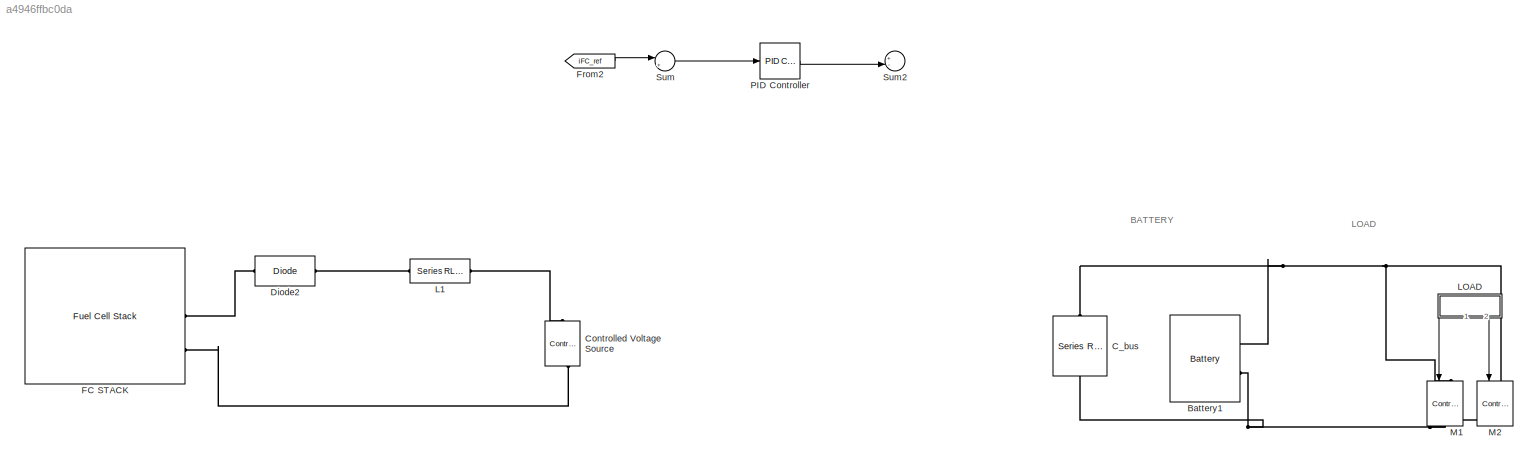
MODEL slx_a4946ffbc0da
KIND model
CONFIG AbsTol = auto
CONFIG EnableMultiTasking = off
CONFIG FixedStep = auto
CONFIG MaxStep = auto
CONFIG MinStep = auto
CONFIG RelTol = 1e-3
CONFIG SampleTimeConstraint = Unconstrained
CONFIG SolverName = VariableStepAuto
CONFIG StartTime = 0.0
CONFIG StopTime = 10.0
BLOCK [Reference] Battery1  REF=spsBatteryLib/Battery
  Ports = [0, 1, 0, 0, 0, 2]
  SourceBlock = spsBatteryLib/Battery
  SourceProductBaseCode = PS
  SourceType = Battery
BLOCK [Reference] C_bus  REF=spsSeriesRLCBranchLib/Series RLC Branch
  NameLocation = left
  Ports = [0, 0, 0, 0, 0, 1, 1]
  SourceBlock = spsSeriesRLCBranchLib/Series RLC Branch
  SourceProductBaseCode = PS
  SourceType = Series RLC Branch
BLOCK [Reference] Controlled Voltage Source  REF=spsControlledVoltageSourceLib/Controlled Voltage Source
  Ports = [1, 0, 0, 0, 0, 1, 1]
  SourceBlock = spsControlledVoltageSourceLib/Controlled Voltage Source
  SourceProductBaseCode = PS
  SourceType = Controlled Voltage Source
BLOCK [Reference] Diode2  REF=spsDiodeLib/Diode
  Ports = [0, 0, 0, 0, 0, 1, 1]
  SourceBlock = spsDiodeLib/Diode
  SourceProductBaseCode = PS
  SourceType = Diode
BLOCK [Reference] FC STACK  REF=spsFuelCellStackLib/Fuel Cell Stack
  Ports = [0, 1, 0, 0, 0, 0, 2]
  SourceBlock = spsFuelCellStackLib/Fuel Cell Stack
  SourceProductBaseCode = PS
  SourceType = Fuel Cell Stack
BLOCK [From] From2
  GotoTag = iFC_ref
BLOCK [Reference] L1  REF=spsSeriesRLCBranchLib/Series RLC Branch
  Ports = [0, 0, 0, 0, 0, 1, 1]
  SourceBlock = spsSeriesRLCBranchLib/Series RLC Branch
  SourceProductBaseCode = PS
  SourceType = Series RLC Branch
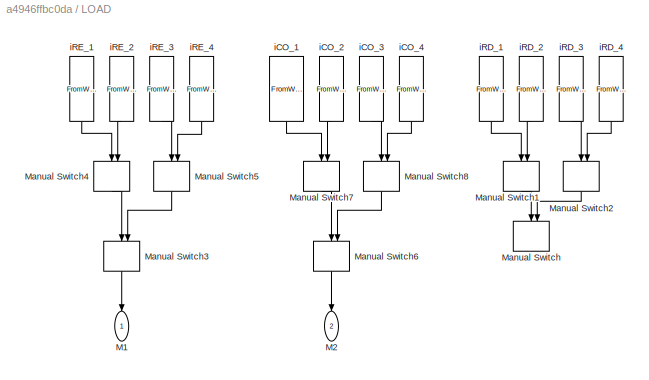
BLOCK [SubSystem] LOAD
  NameLocation = left
  Ports = [0, 2]
  RequestExecContextInheritance = off
BLOCK [Outport] LOAD/M1
  NameLocation = left
BLOCK [Outport] LOAD/M2
  NameLocation = left
  Port = 2
BLOCK [ManualSwitch] LOAD/Manual Switch
  Commented = on
  CurrentSetting = 0
  NameLocation = right
BLOCK [ManualSwitch] LOAD/Manual Switch1
  Commented = on
  NameLocation = right
BLOCK [ManualSwitch] LOAD/Manual Switch2
  Commented = on
  NameLocation = right
BLOCK [ManualSwitch] LOAD/Manual Switch3
  CurrentSetting = 0
  NameLocation = right
BLOCK [ManualSwitch] LOAD/Manual Switch4
  CurrentSetting = 0
  NameLocation = right
BLOCK [ManualSwitch] LOAD/Manual Switch5
  CurrentSetting = 0
  NameLocation = right
BLOCK [ManualSwitch] LOAD/Manual Switch6
  CurrentSetting = 0
  NameLocation = right
BLOCK [ManualSwitch] LOAD/Manual Switch7
  CurrentSetting = 0
  NameLocation = right
BLOCK [ManualSwitch] LOAD/Manual Switch8
  CurrentSetting = 0
  NameLocation = right
BLOCK [FromWorkspace] LOAD/iCO_1
  NameLocation = right
  VariableName = iCO_1
BLOCK [FromWorkspace] LOAD/iCO_2
  NameLocation = right
  VariableName = iCO_2
BLOCK [FromWorkspace] LOAD/iCO_3
  NameLocation = right
  VariableName = iCO_3
BLOCK [FromWorkspace] LOAD/iCO_4
  NameLocation = right
  VariableName = iCO_4
BLOCK [FromWorkspace] LOAD/iRD_1
  Commented = on
  NameLocation = right
  VariableName = iRD_1
BLOCK [FromWorkspace] LOAD/iRD_2
  Commented = on
  NameLocation = right
  VariableName = iRD_2
BLOCK [FromWorkspace] LOAD/iRD_3
  Commented = on
  NameLocation = right
  VariableName = iRD_3
BLOCK [FromWorkspace] LOAD/iRD_4
  Commented = on
  NameLocation = right
  VariableName = iRD_4
BLOCK [FromWorkspace] LOAD/iRE_1
  NameLocation = right
  VariableName = iRE_1
BLOCK [FromWorkspace] LOAD/iRE_2
  NameLocation = right
  VariableName = iRE_2
BLOCK [FromWorkspace] LOAD/iRE_3
  NameLocation = right
  VariableName = iRE_3
BLOCK [FromWorkspace] LOAD/iRE_4
  NameLocation = right
  VariableName = iRE_4
BLOCK [Reference] M1  REF=spsControlledCurrentSourceLib/Controlled Current Source
  NameLocation = left
  Ports = [1, 0, 0, 0, 0, 1, 1]
  SourceBlock = spsControlledCurrentSourceLib/Controlled Current Source
  SourceProductBaseCode = PS
  SourceType = Controlled Current Source
BLOCK [Reference] M2  REF=spsControlledCurrentSourceLib/Controlled Current Source
  NameLocation = left
  Ports = [1, 0, 0, 0, 0, 1, 1]
  SourceBlock = spsControlledCurrentSourceLib/Controlled Current Source
  SourceProductBaseCode = PS
  SourceType = Controlled Current Source
BLOCK [Reference] PID Controller  REF=pid_lib/PID Controller
  Ports = [1, 1]
  SourceBlock = pid_lib/PID Controller
  SourceProductBaseCode = SL
  SourceType = PID 1dof
BLOCK [Sum] Sum
  Inputs = |+-
  Ports = [2, 1]
BLOCK [Sum] Sum2
  Inputs = +-|
  Ports = [2, 1]
ANNOTATION (root): BATTERY
ANNOTATION (root): LOAD
LINE From2:1 -> Sum:1
LINE LOAD/Manual Switch1:1 -> LOAD/Manual Switch:1
LINE LOAD/Manual Switch2:1 -> LOAD/Manual Switch:2
LINE LOAD/Manual Switch3:1 -> LOAD/M1:1
LINE LOAD/Manual Switch4:1 -> LOAD/Manual Switch3:1
LINE LOAD/Manual Switch5:1 -> LOAD/Manual Switch3:2
LINE LOAD/Manual Switch6:1 -> LOAD/M2:1
LINE LOAD/Manual Switch7:1 -> LOAD/Manual Switch6:1
LINE LOAD/Manual Switch8:1 -> LOAD/Manual Switch6:2
LINE LOAD/iCO_1:1 -> LOAD/Manual Switch7:1
LINE LOAD/iCO_2:1 -> LOAD/Manual Switch7:2
LINE LOAD/iCO_3:1 -> LOAD/Manual Switch8:1
LINE LOAD/iCO_4:1 -> LOAD/Manual Switch8:2
LINE LOAD/iRD_1:1 -> LOAD/Manual Switch1:1
LINE LOAD/iRD_2:1 -> LOAD/Manual Switch1:2
LINE LOAD/iRD_3:1 -> LOAD/Manual Switch2:1
LINE LOAD/iRD_4:1 -> LOAD/Manual Switch2:2
LINE LOAD/iRE_1:1 -> LOAD/Manual Switch4:1
LINE LOAD/iRE_2:1 -> LOAD/Manual Switch4:2
LINE LOAD/iRE_3:1 -> LOAD/Manual Switch5:1
LINE LOAD/iRE_4:1 -> LOAD/Manual Switch5:2
LINE LOAD:1 -> M1:1
LINE LOAD:2 -> M2:1
LINE PID Controller:1 -> Sum2:2
LINE Sum:1 -> PID Controller:1
PNET net1: Battery1:LConn1 -- C_bus:LConn1 -- M1:LConn1 -- M2:LConn1
PNET net2: Battery1:LConn2 -- C_bus:RConn1 -- M1:RConn1 -- M2:RConn1
PLINE Controlled Voltage Source:LConn1 -- FC STACK:RConn2
PLINE Controlled Voltage Source:RConn1 -- L1:RConn1
PLINE Diode2:LConn1 -- FC STACK:RConn1
PLINE Diode2:RConn1 -- L1:LConn1
note: PNET lines group multi-terminal physical nets as a canonical sorted terminal list (undirected conserving connections); 2-terminal nets keep the pairwise PLINE form
